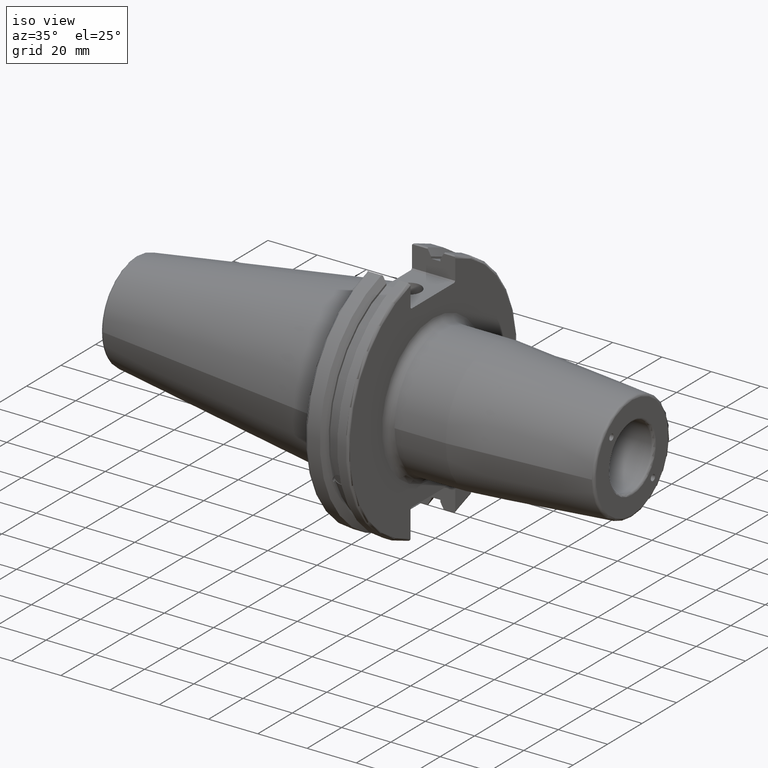
[diagram: clean part render]
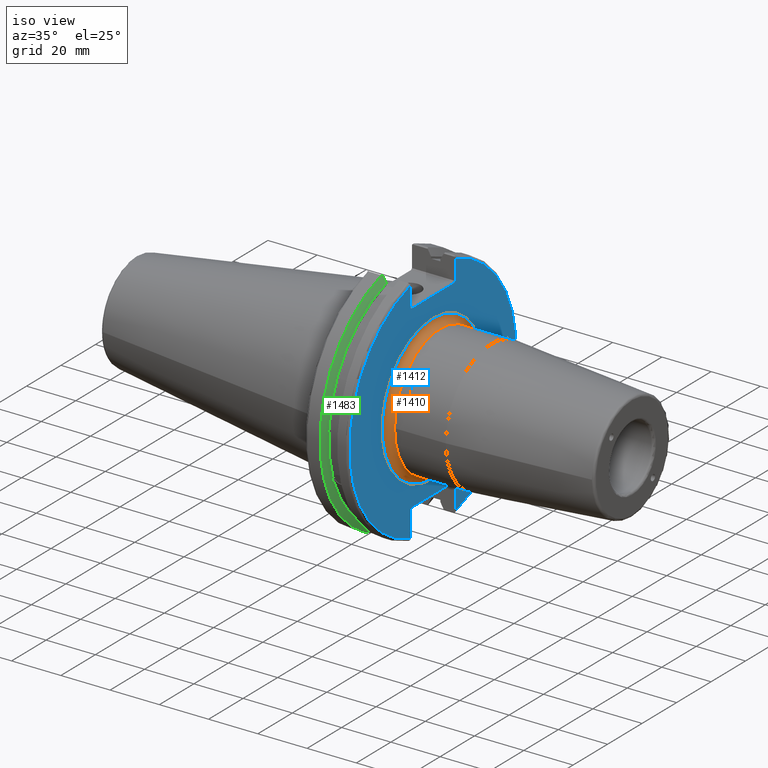
[diagram: same view with three faces highlighted in distinct colors, each labeled with its STEP entity id]
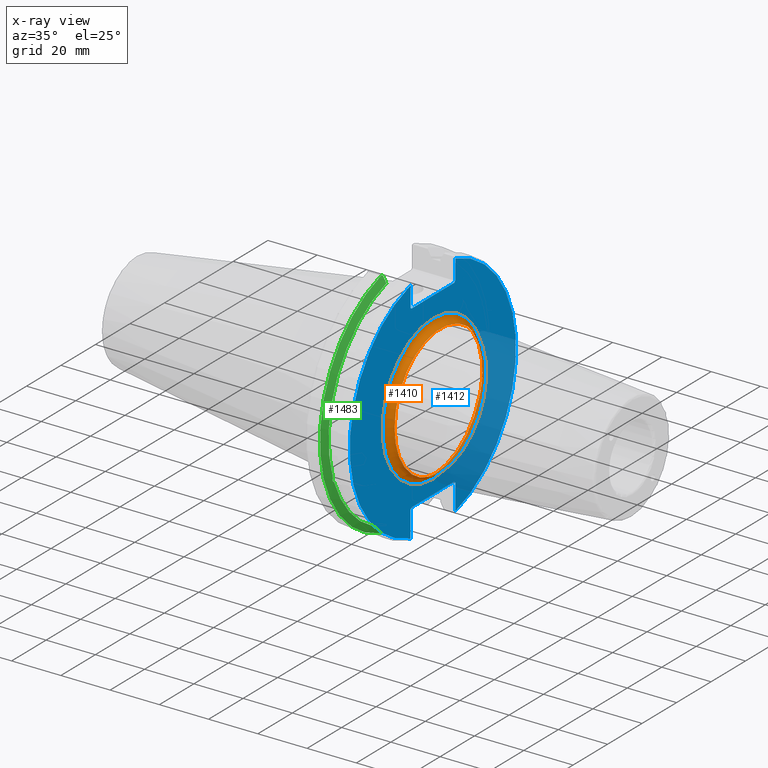
[diagram: x-ray of the same camera — body ghosted, the three highlighted faces saturated]
A machine part, iso view with three faces highlighted in distinct colors.
The next image is the same camera in x-ray (body ghosted, the three faces saturated) — at least one of them is partly hidden behind the body in this view.
Their STEP definitions:

[orange] entity #1410 — the highlighted toroidal blend (fillet) surface has major radius 29.5 mm and minor (blend) radius 3 mm.
#113=TOROIDAL_SURFACE('',#1533,29.5,3.);
#157=FACE_OUTER_BOUND('',#246,.T.);
#246=EDGE_LOOP('',(#992,#993,#994,#995,#996));
#530=CIRCLE('',#1534,26.5);
#531=CIRCLE('',#1535,3.);
#532=CIRCLE('',#1536,29.5);
#533=CIRCLE('',#1537,26.5);
#608=VERTEX_POINT('',#2147);
#609=VERTEX_POINT('',#2148);
#610=VERTEX_POINT('',#2150);
#758=EDGE_CURVE('',#608,#609,#530,.T.);
#759=EDGE_CURVE('',#609,#610,#531,.T.);
#760=EDGE_CURVE('',#610,#610,#532,.T.);
#761=EDGE_CURVE('',#609,#608,#533,.T.);
#992=ORIENTED_EDGE('',*,*,#758,.T.);
#993=ORIENTED_EDGE('',*,*,#759,.T.);
#994=ORIENTED_EDGE('',*,*,#760,.T.);
#995=ORIENTED_EDGE('',*,*,#759,.F.);
#996=ORIENTED_EDGE('',*,*,#761,.T.);
#1410=ADVANCED_FACE('',(#157),#113,.F.);
#1533=AXIS2_PLACEMENT_3D('',#2146,#1730,#1731);
#1534=AXIS2_PLACEMENT_3D('',#2149,#1732,#1733);
#1535=AXIS2_PLACEMENT_3D('',#2151,#1734,#1735);
#1536=AXIS2_PLACEMENT_3D('',#2152,#1736,#1737);
#1537=AXIS2_PLACEMENT_3D('',#2153,#1738,#1739);
#1730=DIRECTION('center_axis',(-1.,0.,0.));
#1731=DIRECTION('ref_axis',(0.,0.,1.));
#1732=DIRECTION('center_axis',(-1.,0.,0.));
#1733=DIRECTION('ref_axis',(0.,-1.,-1.22464679914735E-16));
#1734=DIRECTION('center_axis',(0.,-1.,1.22464679914735E-16));
#1735=DIRECTION('ref_axis',(0.,-1.22464679914735E-16,-1.));
#1736=DIRECTION('center_axis',(1.,0.,0.));
#1737=DIRECTION('ref_axis',(0.,-1.,-1.22464679914735E-16));
#1738=DIRECTION('center_axis',(-1.,0.,0.));
#1739=DIRECTION('ref_axis',(0.,-1.,-1.22464679914735E-16));
#2146=CARTESIAN_POINT('Origin',(22.05,0.,0.));
#2147=CARTESIAN_POINT('',(22.05,-26.5,3.24531401774048E-15));
#2148=CARTESIAN_POINT('',(22.05,-3.24531401774048E-15,-26.5));
#2149=CARTESIAN_POINT('Origin',(22.05,0.,0.));
#2150=CARTESIAN_POINT('',(19.05,-3.61270805748469E-15,-29.5));
#2151=CARTESIAN_POINT('Origin',(22.05,-3.61270805748469E-15,-29.5));
#2152=CARTESIAN_POINT('Origin',(19.05,0.,0.));
#2153=CARTESIAN_POINT('Origin',(22.05,0.,0.));

[blue] entity #1412 — the highlighted planar face has unit normal (1, 0, 0).
#62=FACE_BOUND('',#249,.T.);
#74=PLANE('',#1539);
#159=FACE_OUTER_BOUND('',#248,.T.);
#248=EDGE_LOOP('',(#1002,#1003,#1004,#1005,#1006,#1007,#1008,#1009,#1010,
#1011,#1012,#1013));
#249=EDGE_LOOP('',(#1014));
#341=LINE('',#2161,#433);
#342=LINE('',#2163,#434);
#343=LINE('',#2165,#435);
#344=LINE('',#2167,#436);
#345=LINE('',#2169,#437);
#346=LINE('',#2173,#438);
#347=LINE('',#2175,#439);
#348=LINE('',#2177,#440);
#349=LINE('',#2179,#441);
#350=LINE('',#2180,#442);
#433=VECTOR('',#1747,10.);
#434=VECTOR('',#1748,10.);
#435=VECTOR('',#1749,10.);
#436=VECTOR('',#1750,10.);
#437=VECTOR('',#1751,10.);
#438=VECTOR('',#1754,10.);
#439=VECTOR('',#1755,10.);
#440=VECTOR('',#1756,10.);
#441=VECTOR('',#1757,10.);
#442=VECTOR('',#1758,10.);
#532=CIRCLE('',#1536,29.5);
#534=CIRCLE('',#1540,48.2125);
#535=CIRCLE('',#1541,48.2125);
#610=VERTEX_POINT('',#2150);
#611=VERTEX_POINT('',#2157);
#612=VERTEX_POINT('',#2158);
#613=VERTEX_POINT('',#2160);
#614=VERTEX_POINT('',#2162);
#615=VERTEX_POINT('',#2164);
#616=VERTEX_POINT('',#2166);
#617=VERTEX_POINT('',#2168);
#618=VERTEX_POINT('',#2170);
#619=VERTEX_POINT('',#2172);
#620=VERTEX_POINT('',#2174);
#621=VERTEX_POINT('',#2176);
#622=VERTEX_POINT('',#2178);
#760=EDGE_CURVE('',#610,#610,#532,.T.);
#763=EDGE_CURVE('',#611,#612,#534,.T.);
#764=EDGE_CURVE('',#611,#613,#341,.T.);
#765=EDGE_CURVE('',#614,#613,#342,.T.);
#766=EDGE_CURVE('',#614,#615,#343,.T.);
#767=EDGE_CURVE('',#616,#615,#344,.T.);
#768=EDGE_CURVE('',#616,#617,#345,.T.);
#769=EDGE_CURVE('',#618,#617,#535,.T.);
#770=EDGE_CURVE('',#618,#619,#346,.T.);
#771=EDGE_CURVE('',#620,#619,#347,.T.);
#772=EDGE_CURVE('',#620,#621,#348,.T.);
#773=EDGE_CURVE('',#622,#621,#349,.T.);
#774=EDGE_CURVE('',#622,#612,#350,.T.);
#1002=ORIENTED_EDGE('',*,*,#763,.F.);
#1003=ORIENTED_EDGE('',*,*,#764,.T.);
#1004=ORIENTED_EDGE('',*,*,#765,.F.);
#1005=ORIENTED_EDGE('',*,*,#766,.T.);
#1006=ORIENTED_EDGE('',*,*,#767,.F.);
#1007=ORIENTED_EDGE('',*,*,#768,.T.);
#1008=ORIENTED_EDGE('',*,*,#769,.F.);
#1009=ORIENTED_EDGE('',*,*,#770,.T.);
#1010=ORIENTED_EDGE('',*,*,#771,.F.);
#1011=ORIENTED_EDGE('',*,*,#772,.T.);
#1012=ORIENTED_EDGE('',*,*,#773,.F.);
#1013=ORIENTED_EDGE('',*,*,#774,.T.);
#1014=ORIENTED_EDGE('',*,*,#760,.F.);
#1412=ADVANCED_FACE('',(#159,#62),#74,.T.);
#1536=AXIS2_PLACEMENT_3D('',#2152,#1736,#1737);
#1539=AXIS2_PLACEMENT_3D('',#2156,#1743,#1744);
#1540=AXIS2_PLACEMENT_3D('',#2159,#1745,#1746);
#1541=AXIS2_PLACEMENT_3D('',#2171,#1752,#1753);
#1736=DIRECTION('center_axis',(1.,0.,0.));
#1737=DIRECTION('ref_axis',(0.,-1.,-1.22464679914735E-16));
#1743=DIRECTION('center_axis',(1.,0.,0.));
#1744=DIRECTION('ref_axis',(0.,0.,-1.));
#1745=DIRECTION('center_axis',(-1.,0.,0.));
#1746=DIRECTION('ref_axis',(0.,1.,-6.12323399573677E-17));
#1747=DIRECTION('',(0.,0.,-1.));
#1748=DIRECTION('',(0.,0.707106781186549,0.707106781186546));
#1749=DIRECTION('',(0.,-1.,0.));
#1750=DIRECTION('',(0.,0.707106781186549,-0.707106781186546));
#1751=DIRECTION('',(0.,0.,1.));
#1752=DIRECTION('center_axis',(-1.,0.,0.));
#1753=DIRECTION('ref_axis',(0.,-1.,1.60812264967664E-16));
#1754=DIRECTION('',(0.,0.,1.));
#1755=DIRECTION('',(0.,-0.707106781186549,-0.707106781186546));
#1756=DIRECTION('',(0.,1.,0.));
#1757=DIRECTION('',(0.,-0.707106781186548,0.707106781186548));
#1758=DIRECTION('',(0.,0.,-1.));
#2150=CARTESIAN_POINT('',(19.05,-3.61270805748469E-15,-29.5));
#2152=CARTESIAN_POINT('Origin',(19.05,0.,0.));
#2156=CARTESIAN_POINT('Origin',(19.05,0.,0.));
#2157=CARTESIAN_POINT('',(19.05,12.95,46.4407434937254));
#2158=CARTESIAN_POINT('',(19.05,12.95,-46.4407434937254));
#2159=CARTESIAN_POINT('Origin',(19.05,0.,0.));
#2160=CARTESIAN_POINT('',(19.05,12.95,38.219));
#2161=CARTESIAN_POINT('',(19.05,12.95,18.8595));
#2162=CARTESIAN_POINT('',(19.05,12.45,37.719));
#2163=CARTESIAN_POINT('',(19.05,0.0327499999999836,25.30175));
#2164=CARTESIAN_POINT('',(19.05,-12.45,37.719));
#2165=CARTESIAN_POINT('',(19.05,0.,37.719));
#2166=CARTESIAN_POINT('',(19.05,-12.95,38.219));
#2167=CARTESIAN_POINT('',(19.05,-0.0327499999999817,25.30175));
#2168=CARTESIAN_POINT('',(19.05,-12.95,46.4407434937254));
#2169=CARTESIAN_POINT('',(19.05,-12.95,18.8595));
#2170=CARTESIAN_POINT('',(19.05,-12.95,-46.4407434937254));
#2171=CARTESIAN_POINT('Origin',(19.05,0.,0.));
#2172=CARTESIAN_POINT('',(19.05,-12.95,-35.806));
#2173=CARTESIAN_POINT('',(19.05,-12.95,-17.653));
#2174=CARTESIAN_POINT('',(19.05,-12.45,-35.306));
#2175=CARTESIAN_POINT('',(19.05,-0.635999999999989,-23.492));
#2176=CARTESIAN_POINT('',(19.05,12.45,-35.306));
#2177=CARTESIAN_POINT('',(19.05,-3.88578058618805E-15,-35.306));
#2178=CARTESIAN_POINT('',(19.05,12.95,-35.806));
#2179=CARTESIAN_POINT('',(19.05,0.635999999999995,-23.492));
#2180=CARTESIAN_POINT('',(19.05,12.95,-17.653));

[green] entity #1483 — the highlighted conical surface has half-angle 60 deg.
#25=(
BOUNDED_CURVE()
B_SPLINE_CURVE(2,(#2566,#2567,#2568),.UNSPECIFIED.,.F.,.F.)
B_SPLINE_CURVE_WITH_KNOTS((3,3),(0.,0.275823910674601),.UNSPECIFIED.)
CURVE()
GEOMETRIC_REPRESENTATION_ITEM()
RATIONAL_B_SPLINE_CURVE((1.,1.00038235573593,1.00012873636487))
REPRESENTATION_ITEM('')
);
#26=(
BOUNDED_CURVE()
B_SPLINE_CURVE(2,(#2578,#2579,#2580),.UNSPECIFIED.,.F.,.F.)
B_SPLINE_CURVE_WITH_KNOTS((3,3),(0.0558332664507492,0.331657177124507),
 .UNSPECIFIED.)
CURVE()
GEOMETRIC_REPRESENTATION_ITEM()
RATIONAL_B_SPLINE_CURVE((1.00012873636807,1.00038235574544,1.))
REPRESENTATION_ITEM('')
);
#27=(
BOUNDED_CURVE()
B_SPLINE_CURVE(2,(#2617,#2618,#2619),.UNSPECIFIED.,.F.,.F.)
B_SPLINE_CURVE_WITH_KNOTS((3,3),(0.,0.0648240472897372),.UNSPECIFIED.)
CURVE()
GEOMETRIC_REPRESENTATION_ITEM()
RATIONAL_B_SPLINE_CURVE((1.,1.00011477674836,1.00019140645948))
REPRESENTATION_ITEM('')
);
#28=(
BOUNDED_CURVE()
B_SPLINE_CURVE(2,(#2625,#2626,#2627),.UNSPECIFIED.,.F.,.F.)
B_SPLINE_CURVE_WITH_KNOTS((3,3),(0.325260944932348,0.390084992222201),
 .UNSPECIFIED.)
CURVE()
GEOMETRIC_REPRESENTATION_ITEM()
RATIONAL_B_SPLINE_CURVE((1.00019140645916,1.00011477674817,1.))
REPRESENTATION_ITEM('')
);
#35=B_SPLINE_CURVE_WITH_KNOTS('',3,(#2255,#2256,#2257,#2258,#2259,#2260,
#2261,#2262,#2263,#2264,#2265,#2266,#2267,#2268),.UNSPECIFIED.,.F.,.F.,
(4,2,2,2,2,2,4),(0.426712868358719,0.441644498666906,0.48031331322313,0.518982127779354,
0.557650942335578,0.596319756891801,0.611251387199988),.UNSPECIFIED.);
#230=FACE_OUTER_BOUND('',#330,.T.);
#330=EDGE_LOOP('',(#1366,#1367,#1368,#1369,#1370,#1371,#1372,#1373));
#552=CIRCLE('',#1575,46.4219772964944);
#567=CIRCLE('',#1610,49.2125);
#591=CIRCLE('',#1670,46.4219772964944);
#640=VERTEX_POINT('',#2252);
#641=VERTEX_POINT('',#2254);
#653=VERTEX_POINT('',#2329);
#694=VERTEX_POINT('',#2563);
#695=VERTEX_POINT('',#2565);
#698=VERTEX_POINT('',#2577);
#704=VERTEX_POINT('',#2615);
#705=VERTEX_POINT('',#2621);
#799=EDGE_CURVE('',#641,#640,#35,.T.);
#815=EDGE_CURVE('',#641,#653,#552,.T.);
#870=EDGE_CURVE('',#695,#694,#25,.T.);
#876=EDGE_CURVE('',#698,#653,#26,.T.);
#886=EDGE_CURVE('',#704,#694,#27,.T.);
#888=EDGE_CURVE('',#704,#705,#567,.T.);
#889=EDGE_CURVE('',#698,#705,#28,.T.);
#951=EDGE_CURVE('',#695,#640,#591,.T.);
#1366=ORIENTED_EDGE('',*,*,#799,.T.);
#1367=ORIENTED_EDGE('',*,*,#951,.F.);
#1368=ORIENTED_EDGE('',*,*,#870,.T.);
#1369=ORIENTED_EDGE('',*,*,#886,.F.);
#1370=ORIENTED_EDGE('',*,*,#888,.T.);
#1371=ORIENTED_EDGE('',*,*,#889,.F.);
#1372=ORIENTED_EDGE('',*,*,#876,.T.);
#1373=ORIENTED_EDGE('',*,*,#815,.F.);
#1400=CONICAL_SURFACE('',#1669,47.8172386482472,1.0471975511966);
#1483=ADVANCED_FACE('',(#230),#1400,.T.);
#1575=AXIS2_PLACEMENT_3D('',#2330,#1839,#1840);
#1610=AXIS2_PLACEMENT_3D('',#2623,#1939,#1940);
#1669=AXIS2_PLACEMENT_3D('',#2782,#2088,#2089);
#1670=AXIS2_PLACEMENT_3D('',#2783,#2090,#2091);
#1839=DIRECTION('center_axis',(1.,0.,0.));
#1840=DIRECTION('ref_axis',(0.,0.,-1.));
#1939=DIRECTION('center_axis',(1.,0.,0.));
#1940=DIRECTION('ref_axis',(0.,0.,-1.));
#2088=DIRECTION('center_axis',(-1.,0.,0.));
#2089=DIRECTION('ref_axis',(0.,-1.,-1.22464679914735E-16));
#2090=DIRECTION('center_axis',(1.,0.,0.));
#2091=DIRECTION('ref_axis',(0.,0.,-1.));
#2252=CARTESIAN_POINT('',(9.2191,-43.9096390749305,-15.0646464421033));
#2254=CARTESIAN_POINT('',(9.2191,-43.3201030900029,-16.684383248648));
#2255=CARTESIAN_POINT('Ctrl Pts',(9.21910000000001,-43.3201030900029,-16.6843832486479));
#2256=CARTESIAN_POINT('Ctrl Pts',(9.20211843903392,-43.3613106941341,-16.6592273018006));
#2257=CARTESIAN_POINT('Ctrl Pts',(9.18608675403322,-43.4012416983557,-16.6326763251437));
#2258=CARTESIAN_POINT('Ctrl Pts',(9.13238673845037,-43.5391037343221,-16.5325130832406));
#2259=CARTESIAN_POINT('Ctrl Pts',(9.09621610663556,-43.6406982153491,-16.441180795372));
#2260=CARTESIAN_POINT('Ctrl Pts',(9.04690868251975,-43.8110833825827,-16.2291323464527));
#2261=CARTESIAN_POINT('Ctrl Pts',(9.0341,-43.8794096049168,-16.10796730316));
#2262=CARTESIAN_POINT('Ctrl Pts',(9.0341,-43.9675796948952,-15.8657219718732));
#2263=CARTESIAN_POINT('Ctrl Pts',(9.04690868251975,-43.9931221605126,-15.7289849146254));
#2264=CARTESIAN_POINT('Ctrl Pts',(9.09621610663556,-43.9989016655819,-15.4570249042867));
#2265=CARTESIAN_POINT('Ctrl Pts',(9.13238673845037,-43.9797830409458,-15.3217566390708));
#2266=CARTESIAN_POINT('Ctrl Pts',(9.18608675403322,-43.9385582852181,-15.1564111356409));
#2267=CARTESIAN_POINT('Ctrl Pts',(9.20211843903392,-43.9250360001461,-15.1104047527575));
#2268=CARTESIAN_POINT('Ctrl Pts',(9.2191,-43.9096390749305,-15.0646464421033));
#2329=CARTESIAN_POINT('',(9.2191,-12.95,-44.5791147973604));
#2330=CARTESIAN_POINT('Origin',(9.2191,0.,0.));
#2563=CARTESIAN_POINT('',(7.88638960562424,-12.95,46.9780755322918));
#2565=CARTESIAN_POINT('',(9.2191,-12.95,44.5791147973604));
#2566=CARTESIAN_POINT('Ctrl Pts',(9.2191,-12.95,44.5791147973604));
#2567=CARTESIAN_POINT('Ctrl Pts',(8.57020449055857,-12.95,45.7494966802148));
#2568=CARTESIAN_POINT('Ctrl Pts',(7.88638960562424,-12.95,46.9780755322918));
#2577=CARTESIAN_POINT('',(7.88638960562425,-12.95,-46.9780755322918));
#2578=CARTESIAN_POINT('Ctrl Pts',(7.88638960562425,-12.95,-46.9780755322918));
#2579=CARTESIAN_POINT('Ctrl Pts',(8.57020449054166,-12.95,-45.7494966802452));
#2580=CARTESIAN_POINT('Ctrl Pts',(9.2191,-12.95,-44.5791147973604));
#2615=CARTESIAN_POINT('',(7.60799096595127,-13.4317035994433,47.3440544806494));
#2617=CARTESIAN_POINT('Ctrl Pts',(7.60799096595126,-13.4317035994433,47.3440544806494));
#2618=CARTESIAN_POINT('Ctrl Pts',(7.7482689666382,-13.1896660169966,47.1601640966265));
#2619=CARTESIAN_POINT('Ctrl Pts',(7.88638960562424,-12.95,46.9780755322918));
#2621=CARTESIAN_POINT('',(7.60799096595127,-13.4317035994433,-47.3440544806494));
#2623=CARTESIAN_POINT('Origin',(7.60799096595127,0.,0.));
#2625=CARTESIAN_POINT('Ctrl Pts',(7.88638960562425,-12.95,-46.9780755322918));
#2626=CARTESIAN_POINT('Ctrl Pts',(7.74826896663813,-13.1896660169967,-47.1601640966265));
#2627=CARTESIAN_POINT('Ctrl Pts',(7.60799096595127,-13.4317035994434,-47.3440544806494));
#2782=CARTESIAN_POINT('Origin',(8.41354548297563,0.,0.));
#2783=CARTESIAN_POINT('Origin',(9.2191,0.,0.));